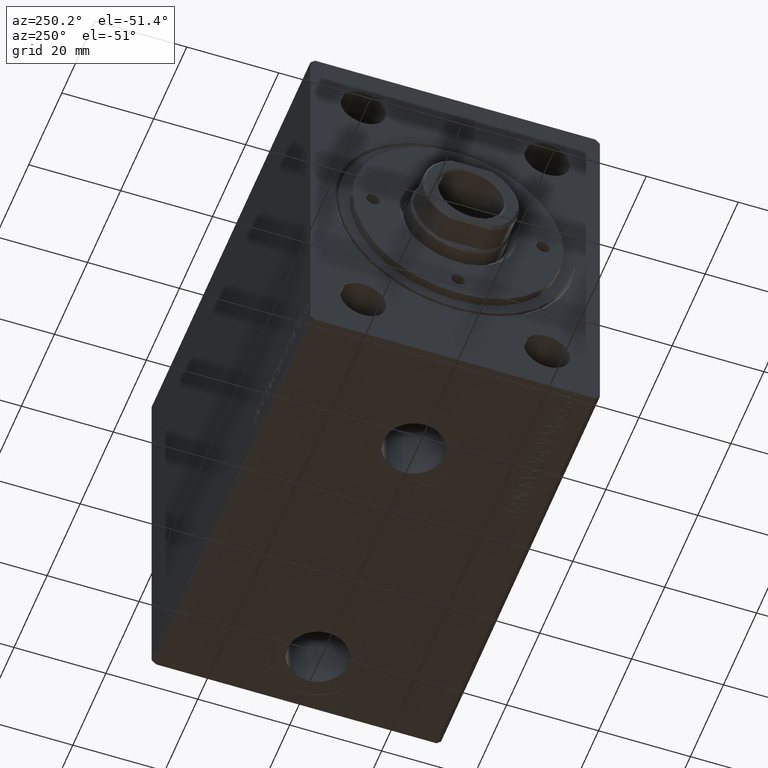
[diagram: clean part render]
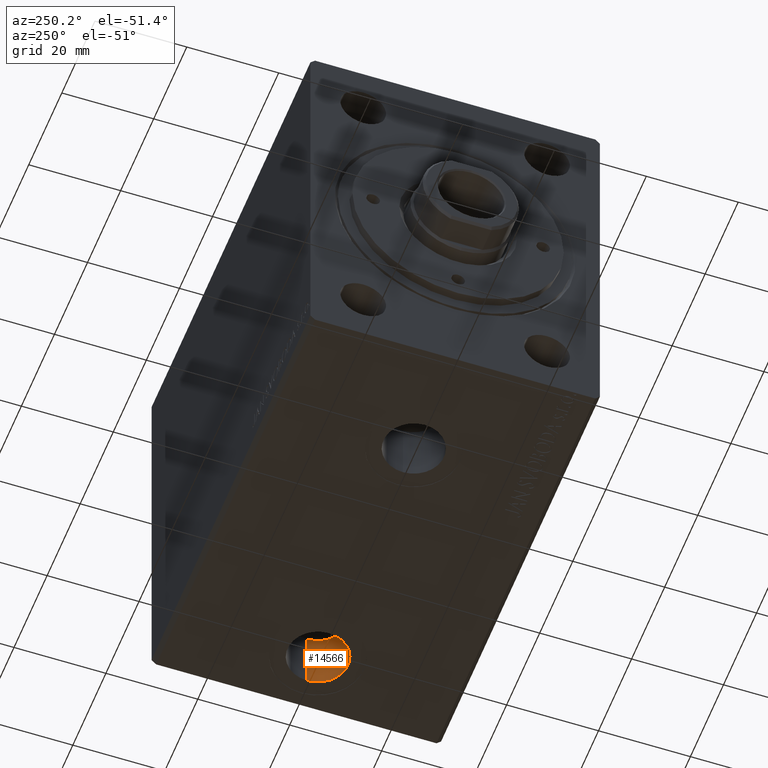
[diagram: same view with one face highlighted and labeled with its STEP entity id]
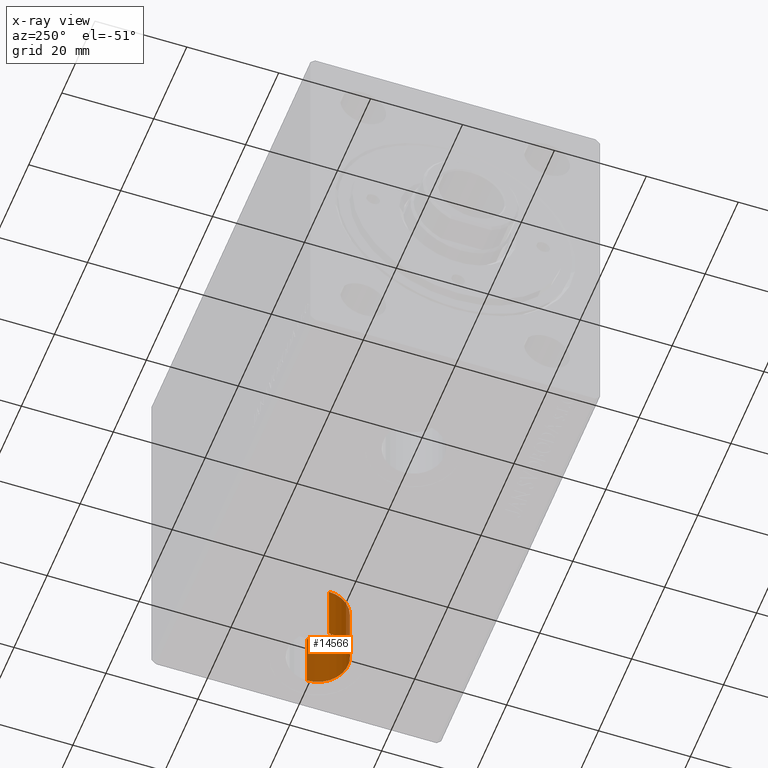
[diagram: x-ray of the same camera — body ghosted, the highlighted face saturated]
A machine part, auxiliary view. The second image highlights one B-rep face of the part: STEP entity #14566.
The next image is the same camera in x-ray: the body ghosted, the highlighted face saturated — about 3% of this face is hidden behind the body in this view.
In plain terms, the highlighted cylindrical surface (edge-blend (fillet) strip) has radius 6.58 mm, axis along (-0, -0, -1).
Its self-contained STEP definition (entity closure, byte-faithful):
#536 = CIRCLE ( 'NONE', #23294, 6.580000000000002736 ) ;
#1880 = CARTESIAN_POINT ( 'NONE',  ( 89.58000000000001251, -9.105570349752486315E-15, -28.80000000000000782 ) ) ;
#3872 = CARTESIAN_POINT ( 'NONE',  ( 76.42000000000000171, -9.911387943591445357E-15, -28.80000000000000782 ) ) ;
#3965 = CARTESIAN_POINT ( 'NONE',  ( 89.58000000000001251, -9.105570349752486315E-15, -42.40000000000000568 ) ) ;
#6386 = VERTEX_POINT ( 'NONE', #3872 ) ;
#7192 = CARTESIAN_POINT ( 'NONE',  ( 83.00000000000000000, -9.911387943591445357E-15, -28.80000000000000782 ) ) ;
#7666 = CIRCLE ( 'NONE', #33975, 6.580000000000002736 ) ;
#8440 = ORIENTED_EDGE ( 'NONE', *, *, #39089, .F. ) ;
#8621 = DIRECTION ( 'NONE',  ( -0.000000000000000000, -0.000000000000000000, -1.000000000000000000 ) ) ;
#10309 = DIRECTION ( 'NONE',  ( 0.000000000000000000, 0.000000000000000000, -1.000000000000000000 ) ) ;
#11531 = EDGE_CURVE ( 'NONE', #26793, #21138, #7666, .T. ) ;
#11964 = CYLINDRICAL_SURFACE ( 'NONE', #28456, 6.580000000000002736 ) ;
#13644 = DIRECTION ( 'NONE',  ( -1.000000000000000000, 0.000000000000000000, 0.000000000000000000 ) ) ;
#14566 = ADVANCED_FACE ( 'NONE', ( #21326 ), #11964, .F. ) ;
#14699 = EDGE_CURVE ( 'NONE', #6386, #21138, #26638, .T. ) ;
#17678 = VERTEX_POINT ( 'NONE', #23428 ) ;
#18366 = DIRECTION ( 'NONE',  ( -0.000000000000000000, -0.000000000000000000, -1.000000000000000000 ) ) ;
#20018 = CARTESIAN_POINT ( 'NONE',  ( 76.42000000000000171, -9.911387943591445357E-15, -42.40000000000000568 ) ) ;
#20293 = DIRECTION ( 'NONE',  ( 0.000000000000000000, 0.000000000000000000, -1.000000000000000000 ) ) ;
#21138 = VERTEX_POINT ( 'NONE', #20018 ) ;
#21326 = FACE_OUTER_BOUND ( 'NONE', #26163, .T. ) ;
#21928 = LINE ( 'NONE', #1880, #28946 ) ;
#22855 = DIRECTION ( 'NONE',  ( -0.000000000000000000, -0.000000000000000000, -1.000000000000000000 ) ) ;
#23294 = AXIS2_PLACEMENT_3D ( 'NONE', #7192, #10309, #13644 ) ;
#23428 = CARTESIAN_POINT ( 'NONE',  ( 89.58000000000001251, -9.105570349752486315E-15, -28.80000000000000782 ) ) ;
#24676 = CARTESIAN_POINT ( 'NONE',  ( 83.00000000000000000, -9.911387943591445357E-15, -28.80000000000000782 ) ) ;
#25145 = ORIENTED_EDGE ( 'NONE', *, *, #14699, .F. ) ;
#26163 = EDGE_LOOP ( 'NONE', ( #8440, #30398, #35442, #25145 ) ) ;
#26638 = LINE ( 'NONE', #36015, #27011 ) ;
#26793 = VERTEX_POINT ( 'NONE', #3965 ) ;
#27011 = VECTOR ( 'NONE', #22855, 1000.000000000000000 ) ;
#28456 = AXIS2_PLACEMENT_3D ( 'NONE', #24676, #8621, #38254 ) ;
#28946 = VECTOR ( 'NONE', #18366, 1000.000000000000000 ) ;
#30398 = ORIENTED_EDGE ( 'NONE', *, *, #38885, .T. ) ;
#33975 = AXIS2_PLACEMENT_3D ( 'NONE', #39697, #20293, #43253 ) ;
#35442 = ORIENTED_EDGE ( 'NONE', *, *, #11531, .T. ) ;
#36015 = CARTESIAN_POINT ( 'NONE',  ( 76.42000000000000171, -9.911387943591445357E-15, -28.80000000000000782 ) ) ;
#38254 = DIRECTION ( 'NONE',  ( -1.000000000000000000, 0.000000000000000000, 0.000000000000000000 ) ) ;
#38885 = EDGE_CURVE ( 'NONE', #17678, #26793, #21928, .T. ) ;
#39089 = EDGE_CURVE ( 'NONE', #17678, #6386, #536, .T. ) ;
#39697 = CARTESIAN_POINT ( 'NONE',  ( 83.00000000000000000, -9.911387943591445357E-15, -42.40000000000000568 ) ) ;
#43253 = DIRECTION ( 'NONE',  ( -1.000000000000000000, 0.000000000000000000, 0.000000000000000000 ) ) ;